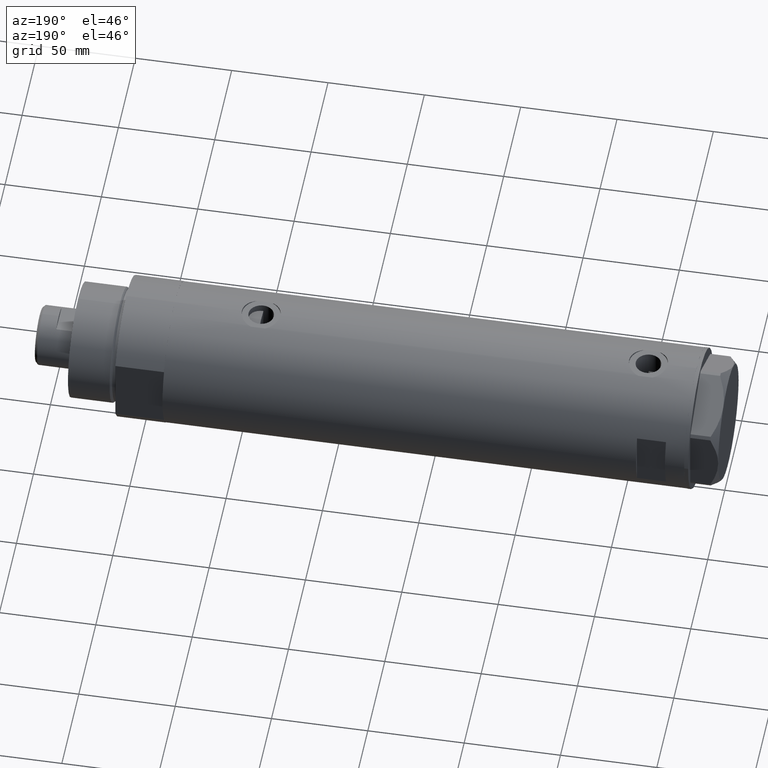
[diagram: clean part render]
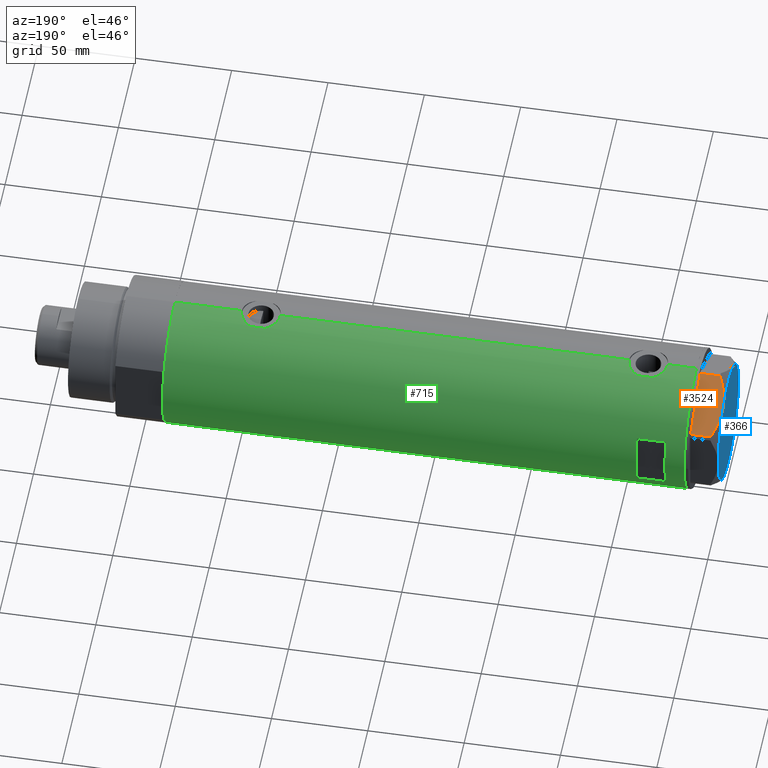
[diagram: same view with three faces highlighted in distinct colors, each labeled with its STEP entity id]
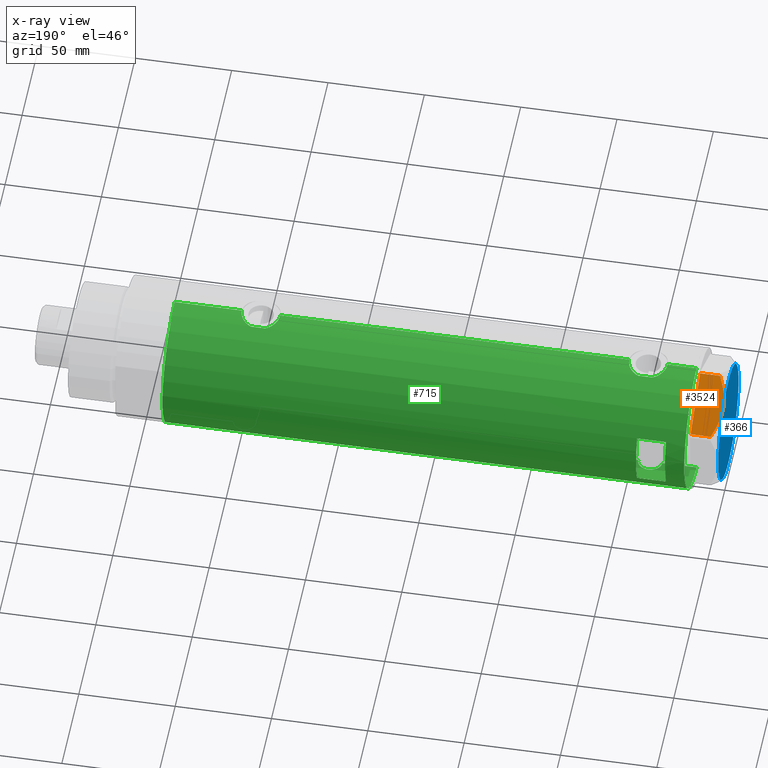
[diagram: x-ray of the same camera — body ghosted, the three highlighted faces saturated]
A machine part, auxiliary view with three faces highlighted in distinct colors.
The next image is the same camera in x-ray (body ghosted, the three faces saturated) — at least one of them is partly hidden behind the body in this view.
Their STEP definitions:

[orange] entity #3524 — the highlighted planar face has unit normal (-0, -0.5, -0.866).
#104 = CARTESIAN_POINT ( 'NONE',  ( 12.54037849421161077, -27.40082525200466179, 14.37423503257921986 ) ) ;
#128 = CARTESIAN_POINT ( 'NONE',  ( 8.929227268745744794, -29.48572438411182262, 13.71922620632299861 ) ) ;
#167 = ORIENTED_EDGE ( 'NONE', *, *, #291, .T. ) ;
#203 = CARTESIAN_POINT ( 'NONE',  ( 3.175372020745254709, -32.80771426042306160, 11.61522964162834803 ) ) ;
#247 = CARTESIAN_POINT ( 'NONE',  ( 29.03005154776141694, -17.88050807568878042, 0.000000000000000000 ) ) ;
#291 = EDGE_CURVE ( 'NONE', #2799, #1263, #2985, .T. ) ;
#314 = ORIENTED_EDGE ( 'NONE', *, *, #4202, .T. ) ;
#385 = VECTOR ( 'NONE', #509, 1000.000000000000000 ) ;
#397 = CARTESIAN_POINT ( 'NONE',  ( 14.99999999999998757, -25.98076211353316722, 14.50000000000000000 ) ) ;
#419 = CARTESIAN_POINT ( 'NONE',  ( 14.99999999999998757, -25.98076211353316722, 14.50000000000000000 ) ) ;
#441 = CARTESIAN_POINT ( 'NONE',  ( 25.09761465865700103, -20.15090157218441647, 12.31959434659020047 ) ) ;
#448 = CARTESIAN_POINT ( 'NONE',  ( 11.92931894229900891, -27.75362064879230317, 14.29910535634587276 ) ) ;
#509 = DIRECTION ( 'NONE',  ( 0.000000000000000000, 0.000000000000000000, -1.000000000000000000 ) ) ;
#569 = VECTOR ( 'NONE', #2212, 1000.000000000000000 ) ;
#685 = CARTESIAN_POINT ( 'NONE',  ( 27.92668431253404293, -18.51753744596231854, 11.01056656432685266 ) ) ;
#699 = EDGE_CURVE ( 'NONE', #2799, #4018, #3143, .T. ) ;
#706 = CARTESIAN_POINT ( 'NONE',  ( -5.841958412462644145E-15, -34.64101615137753498, 14.50000000000000000 ) ) ;
#730 = CARTESIAN_POINT ( 'NONE',  ( 0.9699484522385750651, -34.08101615137752560, 0.000000000000000000 ) ) ;
#905 = CARTESIAN_POINT ( 'NONE',  ( 0.9699484522384129725, -34.08101615137761797, 10.40518423703596262 ) ) ;
#934 = EDGE_LOOP ( 'NONE', ( #3682, #167, #3094, #314, #3570 ) ) ;
#1041 = FACE_OUTER_BOUND ( 'NONE', #934, .T. ) ;
#1263 = VERTEX_POINT ( 'NONE', #730 ) ;
#1340 = LINE ( 'NONE', #4108, #2207 ) ;
#1556 = CARTESIAN_POINT ( 'NONE',  ( 14.38812268849981457, -26.33402964403881086, 14.50000000000000533 ) ) ;
#1655 = DIRECTION ( 'NONE',  ( 0.8660254037844389297, 0.4999999999999996114, 0.000000000000000000 ) ) ;
#1784 = CARTESIAN_POINT ( 'NONE',  ( 22.77266513462829067, -21.49321180573469547, 13.19311392138146566 ) ) ;
#1989 = AXIS2_PLACEMENT_3D ( 'NONE', #706, #3482, #2073 ) ;
#2073 = DIRECTION ( 'NONE',  ( -0.8660254037844389297, -0.4999999999999996114, 0.000000000000000000 ) ) ;
#2159 = B_SPLINE_CURVE_WITH_KNOTS ( 'NONE', 3,
 ( #419, #2390, #3785, #1784, #2481, #3104, #441, #3179, #685, #4225 ),
 .UNSPECIFIED., .F., .F.,
 ( 4, 2, 2, 2, 4 ),
 ( 0.01795453117522810213, 0.02625795893839791284, 0.02833381587919036812, 0.03040967281998282340, 0.03456138670156773396 ),
 .UNSPECIFIED. ) ;
#2185 = CARTESIAN_POINT ( 'NONE',  ( 29.03005154776141694, -17.88050807568878042, 14.50000000000000000 ) ) ;
#2207 = VECTOR ( 'NONE', #1655, 1000.000000000000000 ) ;
#2212 = DIRECTION ( 'NONE',  ( 0.000000000000000000, 0.000000000000000000, 1.000000000000000000 ) ) ;
#2228 = EDGE_CURVE ( 'NONE', #4018, #4350, #2159, .T. ) ;
#2390 = CARTESIAN_POINT ( 'NONE',  ( 17.43031680809873762, -24.57761805016126644, 14.50000000000000711 ) ) ;
#2407 = PLANE ( 'NONE',  #1989 ) ;
#2481 = CARTESIAN_POINT ( 'NONE',  ( 23.36084816446653889, -21.15362417512481130, 12.99122625442232604 ) ) ;
#2490 = CARTESIAN_POINT ( 'NONE',  ( 5.430403497542005020, -31.50577123026336679, 12.63511531451933045 ) ) ;
#2513 = CARTESIAN_POINT ( 'NONE',  ( 10.11505054612624477, -28.80108899570488035, 14.00566141361761296 ) ) ;
#2799 = VERTEX_POINT ( 'NONE', #905 ) ;
#2956 = CARTESIAN_POINT ( 'NONE',  ( 13.77383861939864218, -26.68868671669325821, 14.47500996539162088 ) ) ;
#2985 = LINE ( 'NONE', #3629, #385 ) ;
#2994 = CARTESIAN_POINT ( 'NONE',  ( 29.03005154776142049, -17.88050807568878042, 10.40518423703603901 ) ) ;
#3094 = ORIENTED_EDGE ( 'NONE', *, *, #4363, .T. ) ;
#3104 = CARTESIAN_POINT ( 'NONE',  ( 24.52256617298829156, -20.48290597018233328, 12.55468001512206833 ) ) ;
#3143 = B_SPLINE_CURVE_WITH_KNOTS ( 'NONE', 3,
 ( #3300, #203, #2490, #128, #2513, #448, #104, #2956, #1556, #4348 ),
 .UNSPECIFIED., .F., .F.,
 ( 4, 2, 2, 2, 4 ),
 ( 0.001230196178133386971, 0.009592363676680742274, 0.01377344742595442220, 0.01586398930059126217, 0.01795453117522810213 ),
 .UNSPECIFIED. ) ;
#3179 = CARTESIAN_POINT ( 'NONE',  ( 26.80734602959450541, -19.16378770493171402, 11.56973717813738212 ) ) ;
#3300 = CARTESIAN_POINT ( 'NONE',  ( 0.9699484522384129725, -34.08101615137761797, 10.40518423703596262 ) ) ;
#3482 = DIRECTION ( 'NONE',  ( -0.4999999999999996114, 0.8660254037844389297, 0.000000000000000000 ) ) ;
#3524 = ADVANCED_FACE ( 'NONE', ( #1041 ), #2407, .F. ) ;
#3570 = ORIENTED_EDGE ( 'NONE', *, *, #2228, .F. ) ;
#3629 = CARTESIAN_POINT ( 'NONE',  ( 0.9699484522385750651, -34.08101615137752560, 14.50000000000000000 ) ) ;
#3636 = LINE ( 'NONE', #2185, #569 ) ;
#3682 = ORIENTED_EDGE ( 'NONE', *, *, #699, .F. ) ;
#3785 = CARTESIAN_POINT ( 'NONE',  ( 19.82219921729533141, -23.19666409734169221, 14.10092492974135503 ) ) ;
#3966 = VERTEX_POINT ( 'NONE', #247 ) ;
#4018 = VERTEX_POINT ( 'NONE', #397 ) ;
#4108 = CARTESIAN_POINT ( 'NONE',  ( -5.841958412462644145E-15, -34.64101615137753498, 0.000000000000000000 ) ) ;
#4202 = EDGE_CURVE ( 'NONE', #3966, #4350, #3636, .T. ) ;
#4225 = CARTESIAN_POINT ( 'NONE',  ( 29.03005154776142049, -17.88050807568878042, 10.40518423703603901 ) ) ;
#4348 = CARTESIAN_POINT ( 'NONE',  ( 14.99999999999998757, -25.98076211353316722, 14.50000000000000000 ) ) ;
#4350 = VERTEX_POINT ( 'NONE', #2994 ) ;
#4363 = EDGE_CURVE ( 'NONE', #1263, #3966, #1340, .T. ) ;

[blue] entity #366 — the highlighted planar face has unit normal (-1, -0, 0).
#38 = AXIS2_PLACEMENT_3D ( 'NONE', #3943, #145, #2593 ) ;
#39 = CARTESIAN_POINT ( 'NONE',  ( 0.000000000000000000, 0.000000000000000000, 14.50000000000000000 ) ) ;
#55 = AXIS2_PLACEMENT_3D ( 'NONE', #1371, #2735, #923 ) ;
#145 = DIRECTION ( 'NONE',  ( 0.000000000000000000, 0.000000000000000000, 1.000000000000000000 ) ) ;
#193 = EDGE_CURVE ( 'NONE', #882, #3335, #3929, .T. ) ;
#366 = ADVANCED_FACE ( 'NONE', ( #2723 ), #4123, .T. ) ;
#382 = VERTEX_POINT ( 'NONE', #1380 ) ;
#397 = CARTESIAN_POINT ( 'NONE',  ( 14.99999999999998757, -25.98076211353316722, 14.50000000000000000 ) ) ;
#432 = DIRECTION ( 'NONE',  ( 0.000000000000000000, 0.000000000000000000, 1.000000000000000000 ) ) ;
#439 = ORIENTED_EDGE ( 'NONE', *, *, #1888, .T. ) ;
#686 = CIRCLE ( 'NONE', #1979, 30.00000000000000000 ) ;
#792 = DIRECTION ( 'NONE',  ( 1.000000000000000000, 0.000000000000000000, 0.000000000000000000 ) ) ;
#829 = ORIENTED_EDGE ( 'NONE', *, *, #1634, .T. ) ;
#882 = VERTEX_POINT ( 'NONE', #2551 ) ;
#907 = DIRECTION ( 'NONE',  ( 0.000000000000000000, 0.000000000000000000, 1.000000000000000000 ) ) ;
#923 = DIRECTION ( 'NONE',  ( 1.000000000000000000, 0.000000000000000000, 0.000000000000000000 ) ) ;
#1037 = AXIS2_PLACEMENT_3D ( 'NONE', #2381, #432, #2812 ) ;
#1048 = AXIS2_PLACEMENT_3D ( 'NONE', #3577, #1817, #792 ) ;
#1078 = DIRECTION ( 'NONE',  ( 0.000000000000000000, 0.000000000000000000, 1.000000000000000000 ) ) ;
#1120 = CIRCLE ( 'NONE', #1048, 30.00000000000000000 ) ;
#1152 = VERTEX_POINT ( 'NONE', #1739 ) ;
#1368 = EDGE_CURVE ( 'NONE', #382, #3019, #2763, .T. ) ;
#1371 = CARTESIAN_POINT ( 'NONE',  ( 0.000000000000000000, 0.000000000000000000, 14.50000000000000000 ) ) ;
#1380 = CARTESIAN_POINT ( 'NONE',  ( -14.99999999999999645, 25.98076211353316367, 14.50000000000000000 ) ) ;
#1630 = CARTESIAN_POINT ( 'NONE',  ( 14.99999999999999467, 25.98076211353316367, 14.50000000000000000 ) ) ;
#1634 = EDGE_CURVE ( 'NONE', #3019, #1152, #1120, .T. ) ;
#1739 = CARTESIAN_POINT ( 'NONE',  ( -14.99999999999999645, -25.98076211353316367, 14.50000000000000000 ) ) ;
#1817 = DIRECTION ( 'NONE',  ( 0.000000000000000000, 0.000000000000000000, 1.000000000000000000 ) ) ;
#1888 = EDGE_CURVE ( 'NONE', #3335, #382, #686, .T. ) ;
#1905 = DIRECTION ( 'NONE',  ( 1.000000000000000000, 0.000000000000000000, 0.000000000000000000 ) ) ;
#1942 = CARTESIAN_POINT ( 'NONE',  ( 0.000000000000000000, 0.000000000000000000, 14.50000000000000000 ) ) ;
#1979 = AXIS2_PLACEMENT_3D ( 'NONE', #39, #1078, #2440 ) ;
#2381 = CARTESIAN_POINT ( 'NONE',  ( 0.000000000000000000, 0.000000000000000000, 14.50000000000000000 ) ) ;
#2440 = DIRECTION ( 'NONE',  ( 1.000000000000000000, 0.000000000000000000, 0.000000000000000000 ) ) ;
#2463 = AXIS2_PLACEMENT_3D ( 'NONE', #1942, #907, #2571 ) ;
#2551 = CARTESIAN_POINT ( 'NONE',  ( 30.00000000000000000, 9.013887592422954582E-15, 14.50000000000000000 ) ) ;
#2571 = DIRECTION ( 'NONE',  ( 1.000000000000000000, 0.000000000000000000, 0.000000000000000000 ) ) ;
#2593 = DIRECTION ( 'NONE',  ( 1.000000000000000000, 0.000000000000000000, 0.000000000000000000 ) ) ;
#2671 = EDGE_LOOP ( 'NONE', ( #4378, #3385, #439, #4097, #829, #4475 ) ) ;
#2723 = FACE_OUTER_BOUND ( 'NONE', #2671, .T. ) ;
#2735 = DIRECTION ( 'NONE',  ( 0.000000000000000000, 0.000000000000000000, 1.000000000000000000 ) ) ;
#2763 = CIRCLE ( 'NONE', #38, 30.00000000000000000 ) ;
#2812 = DIRECTION ( 'NONE',  ( 1.000000000000000000, 0.000000000000000000, -0.000000000000000000 ) ) ;
#3019 = VERTEX_POINT ( 'NONE', #3232 ) ;
#3232 = CARTESIAN_POINT ( 'NONE',  ( -30.00000000000000000, 0.000000000000000000, 14.50000000000000000 ) ) ;
#3302 = CARTESIAN_POINT ( 'NONE',  ( 0.000000000000000000, 0.000000000000000000, 14.50000000000000000 ) ) ;
#3335 = VERTEX_POINT ( 'NONE', #1630 ) ;
#3385 = ORIENTED_EDGE ( 'NONE', *, *, #193, .T. ) ;
#3577 = CARTESIAN_POINT ( 'NONE',  ( 0.000000000000000000, 0.000000000000000000, 14.50000000000000000 ) ) ;
#3697 = EDGE_CURVE ( 'NONE', #4018, #882, #3879, .T. ) ;
#3879 = CIRCLE ( 'NONE', #3955, 30.00000000000000000 ) ;
#3929 = CIRCLE ( 'NONE', #2463, 30.00000000000000000 ) ;
#3937 = EDGE_CURVE ( 'NONE', #1152, #4018, #4254, .T. ) ;
#3943 = CARTESIAN_POINT ( 'NONE',  ( 0.000000000000000000, 0.000000000000000000, 14.50000000000000000 ) ) ;
#3954 = DIRECTION ( 'NONE',  ( 0.000000000000000000, 0.000000000000000000, 1.000000000000000000 ) ) ;
#3955 = AXIS2_PLACEMENT_3D ( 'NONE', #3302, #3954, #1905 ) ;
#4018 = VERTEX_POINT ( 'NONE', #397 ) ;
#4097 = ORIENTED_EDGE ( 'NONE', *, *, #1368, .T. ) ;
#4123 = PLANE ( 'NONE',  #1037 ) ;
#4254 = CIRCLE ( 'NONE', #55, 30.00000000000000000 ) ;
#4378 = ORIENTED_EDGE ( 'NONE', *, *, #3697, .T. ) ;
#4475 = ORIENTED_EDGE ( 'NONE', *, *, #3937, .T. ) ;

[green] entity #715 — the highlighted cylindrical surface (partial cylindrical patch) has radius 36.5 mm, axis along (-1, -0, 0).
#17 = ORIENTED_EDGE ( 'NONE', *, *, #3029, .F. ) ;
#18 = CARTESIAN_POINT ( 'NONE',  ( -35.96088929326157313, 6.250155299092687855, -99.50610494763242286 ) ) ;
#41 = CARTESIAN_POINT ( 'NONE',  ( -36.49999999999999289, 0.4083036190459308212, -105.3499999999999801 ) ) ;
#44 = CARTESIAN_POINT ( 'NONE',  ( -35.99700617875953412, 6.038972911021586398, 113.0233318579832229 ) ) ;
#85 = CARTESIAN_POINT ( 'NONE',  ( -36.26695135241003953, 4.128455078791301247, 106.6896240835525163 ) ) ;
#125 = AXIS2_PLACEMENT_3D ( 'NONE', #156, #1534, #3640 ) ;
#151 = CARTESIAN_POINT ( 'NONE',  ( 35.52737867031126484, 8.373910777960906771, -96.08860356717065088 ) ) ;
#154 = CARTESIAN_POINT ( 'NONE',  ( 36.50000000000000000, 0.000000000000000000, 100.4000000000000057 ) ) ;
#156 = CARTESIAN_POINT ( 'NONE',  ( 0.000000000000000000, 0.000000000000000000, 125.3999999999999773 ) ) ;
#176 = VERTEX_POINT ( 'NONE', #3287 ) ;
#189 = CARTESIAN_POINT ( 'NONE',  ( 35.29999999999999716, 9.282241108697837362, -135.4000000000000057 ) ) ;
#197 = CARTESIAN_POINT ( 'NONE',  ( 36.50000000000000000, 0.000000000000000000, -100.5999999999999801 ) ) ;
#214 = CARTESIAN_POINT ( 'NONE',  ( 35.83170458557578542, 6.955065627744199119, 117.5894167191246282 ) ) ;
#227 = CARTESIAN_POINT ( 'NONE',  ( 36.34264078466112124, 3.418717136061403927, -81.18950965959248833 ) ) ;
#251 = CARTESIAN_POINT ( 'NONE',  ( -36.50000000000000000, 4.469960816887838430E-15, -135.4000000000000057 ) ) ;
#252 = CARTESIAN_POINT ( 'NONE',  ( 0.000000000000000000, 0.000000000000000000, 110.3999999999999773 ) ) ;
#255 = ORIENTED_EDGE ( 'NONE', *, *, #4158, .F. ) ;
#257 = DIRECTION ( 'NONE',  ( 0.000000000000000000, 0.000000000000000000, 1.000000000000000000 ) ) ;
#276 = CARTESIAN_POINT ( 'NONE',  ( -36.44504802628534179, 2.011764947064737630, 117.3209364490851669 ) ) ;
#279 = CIRCLE ( 'NONE', #125, 36.50000000000000000 ) ;
#298 = CARTESIAN_POINT ( 'NONE',  ( 36.40008489419980720, 2.709263960908029123, 120.0291810459638668 ) ) ;
#330 = VERTEX_POINT ( 'NONE', #1333 ) ;
#334 = CARTESIAN_POINT ( 'NONE',  ( 36.48988646280794512, 0.9921857666168139023, -80.63671884865571826 ) ) ;
#354 = B_SPLINE_CURVE_WITH_KNOTS ( 'NONE', 3,
 ( #2335, #4376, #2589, #3027, #3735, #1266, #214, #1939, #4069, #2631, #930, #2003, #3397, #298, #2245, #554, #3313, #4259, #2508, #1149 ),
 .UNSPECIFIED., .F., .F.,
 ( 4, 2, 2, 2, 2, 2, 2, 2, 2, 4 ),
 ( 0.000000000000000000, 0.002977391289382919342, 0.003721739111728640179, 0.004466086934074362316, 0.005954782578765775367, 0.007443478223457188417, 0.008932173868148601467, 0.009676521690494316666, 0.01042086951284003013, 0.01190956515753145012 ),
 .UNSPECIFIED. ) ;
#376 = CARTESIAN_POINT ( 'NONE',  ( -36.49297130294515057, 0.8204796224394291793, -92.89068307782267198 ) ) ;
#377 = CARTESIAN_POINT ( 'NONE',  ( -36.05296344941216091, 5.695624845616832133, 108.8184514346324931 ) ) ;
#401 = CARTESIAN_POINT ( 'NONE',  ( -36.50000000000000000, 0.4137727629436737664, -92.85000000000000853 ) ) ;
#425 = CARTESIAN_POINT ( 'NONE',  ( 35.40502660484481368, 8.876998817796907915, 105.7690127592876621 ) ) ;
#445 = VERTEX_POINT ( 'NONE', #3667 ) ;
#446 = CARTESIAN_POINT ( 'NONE',  ( 35.72860827204725354, 7.471059959301281417, 103.7347484952559284 ) ) ;
#473 = ORIENTED_EDGE ( 'NONE', *, *, #3624, .F. ) ;
#494 = CARTESIAN_POINT ( 'NONE',  ( 36.36225053217120973, 3.177096004138049601, -100.0851602447597770 ) ) ;
#538 = CARTESIAN_POINT ( 'NONE',  ( 36.34070350304396868, 3.414301401755543974, -100.0023621737590531 ) ) ;
#554 = CARTESIAN_POINT ( 'NONE',  ( 36.44688397185920081, 1.983417953489138741, 120.2044995764825472 ) ) ;
#567 = CARTESIAN_POINT ( 'NONE',  ( 36.40008489419980720, 2.709263960908029123, -80.97081895403604790 ) ) ;
#577 = DIRECTION ( 'NONE',  ( -0.000000000000000000, -0.000000000000000000, 1.000000000000000000 ) ) ;
#597 = VERTEX_POINT ( 'NONE', #635 ) ;
#635 = CARTESIAN_POINT ( 'NONE',  ( -36.50000000000000000, 1.603939656238031057E-15, -92.84999999999999432 ) ) ;
#643 = LINE ( 'NONE', #2988, #4153 ) ;
#653 = CARTESIAN_POINT ( 'NONE',  ( -36.30200038006936580, 3.811959488093743520, -94.13027895163997982 ) ) ;
#655 = CARTESIAN_POINT ( 'NONE',  ( -36.06675137892952421, 5.607935153446978127, 114.1668182600875809 ) ) ;
#669 = CARTESIAN_POINT ( 'NONE',  ( -36.44628644024909647, 2.015372769639941275, -105.0302812801358527 ) ) ;
#673 = CARTESIAN_POINT ( 'NONE',  ( -36.50000000000000000, 1.603939656238031057E-15, 117.6500000000000057 ) ) ;
#703 = EDGE_CURVE ( 'NONE', #4368, #2062, #4402, .T. ) ;
#715 = ADVANCED_FACE ( 'NONE', ( #2392, #1050 ), #2118, .T. ) ;
#722 = CARTESIAN_POINT ( 'NONE',  ( -35.99530513653993324, 6.049346314076207598, 109.7766741696416375 ) ) ;
#736 = CARTESIAN_POINT ( 'NONE',  ( -36.03936508729894683, 5.782103729777505308, -96.70129467396202472 ) ) ;
#737 = CARTESIAN_POINT ( 'NONE',  ( -36.30181775639987052, 3.813582387016785091, 106.4316394242556072 ) ) ;
#750 = EDGE_CURVE ( 'NONE', #1249, #2876, #3085, .T. ) ;
#761 = CARTESIAN_POINT ( 'NONE',  ( -36.06690560274405044, 5.606949625760674571, 108.6311407604106876 ) ) ;
#775 = VERTEX_POINT ( 'NONE', #1076 ) ;
#788 = CARTESIAN_POINT ( 'NONE',  ( 35.72794581931695745, 7.469526493268205058, -83.94660203271737942 ) ) ;
#799 = CARTESIAN_POINT ( 'NONE',  ( 36.50000000000000711, 1.005842003469123336, 100.4000000000000199 ) ) ;
#802 = CARTESIAN_POINT ( 'NONE',  ( -36.40902375114221456, 2.582415566883930591, 105.7047830853031058 ) ) ;
#809 = ORIENTED_EDGE ( 'NONE', *, *, #2572, .T. ) ;
#821 = CARTESIAN_POINT ( 'NONE',  ( 36.45853166336080875, 1.985123042546145022, -100.4516267041773432 ) ) ;
#851 = CARTESIAN_POINT ( 'NONE',  ( 36.50000000000000000, 4.344614706140975428E-19, -80.59999999999999432 ) ) ;
#854 = CARTESIAN_POINT ( 'NONE',  ( 35.59366931936805400, 8.089554397885871495, 104.5007268091218862 ) ) ;
#873 = CARTESIAN_POINT ( 'NONE',  ( 35.40502660484481368, 8.876998817796907915, -95.23098724071233789 ) ) ;
#903 = DIRECTION ( 'NONE',  ( -1.000000000000000000, -1.776356839400250465E-15, 0.000000000000000000 ) ) ;
#904 = VECTOR ( 'NONE', #2384, 1000.000000000000000 ) ;
#912 = VECTOR ( 'NONE', #3579, 1000.000000000000000 ) ;
#918 = CARTESIAN_POINT ( 'NONE',  ( 35.29999999999999716, 9.282241108697837362, -135.4000000000000057 ) ) ;
#930 = CARTESIAN_POINT ( 'NONE',  ( 36.18937351723702278, 4.773052864917646687, 119.2013599311883922 ) ) ;
#941 = ORIENTED_EDGE ( 'NONE', *, *, #2038, .T. ) ;
#970 = CARTESIAN_POINT ( 'NONE',  ( -36.36688032967140316, 3.133094607697482825, 116.8233643263751134 ) ) ;
#993 = CARTESIAN_POINT ( 'NONE',  ( -36.11199073531170001, 5.309184630646994307, -95.79587159233167881 ) ) ;
#996 = CARTESIAN_POINT ( 'NONE',  ( -36.16126303108062956, 4.966520032693302333, 115.2164122774528181 ) ) ;
#1014 = CARTESIAN_POINT ( 'NONE',  ( -36.46598788992680085, 1.625721481788714895, -105.1487204671383608 ) ) ;
#1050 = FACE_OUTER_BOUND ( 'NONE', #1264, .T. ) ;
#1054 = CARTESIAN_POINT ( 'NONE',  ( -36.36688032967140316, 3.133094607697482825, -93.67663567362490085 ) ) ;
#1056 = VERTEX_POINT ( 'NONE', #1595 ) ;
#1058 = CARTESIAN_POINT ( 'NONE',  ( -36.19597718496778072, 4.710322426433902976, 107.2714838923798482 ) ) ;
#1066 = DIRECTION ( 'NONE',  ( 1.000000000000000000, 0.000000000000000000, 0.000000000000000000 ) ) ;
#1076 = CARTESIAN_POINT ( 'NONE',  ( 36.50000000000000000, 0.000000000000000000, -100.5999999999999801 ) ) ;
#1080 = CARTESIAN_POINT ( 'NONE',  ( -36.09617453667821252, 5.415318599347967776, -95.97293357327089325 ) ) ;
#1082 = CARTESIAN_POINT ( 'NONE',  ( -35.96088929326157313, 6.250155299092687855, 110.9938950523675345 ) ) ;
#1097 = VERTEX_POINT ( 'NONE', #1657 ) ;
#1098 = CARTESIAN_POINT ( 'NONE',  ( 35.34894515018992678, 9.096104616284845790, 106.2153591653345615 ) ) ;
#1127 = CARTESIAN_POINT ( 'NONE',  ( -35.96805604460922723, 6.209309709790234777, 110.5788724173182942 ) ) ;
#1130 = LINE ( 'NONE', #3277, #3511 ) ;
#1149 = CARTESIAN_POINT ( 'NONE',  ( 36.50000000000000000, 4.344614706140975428E-19, 120.3999999999999915 ) ) ;
#1154 = CARTESIAN_POINT ( 'NONE',  ( -36.01524716445113938, 5.931039972055515364, 109.3866926813534661 ) ) ;
#1167 = CARTESIAN_POINT ( 'NONE',  ( 36.00287854058830561, 6.017835360302999703, -98.60188117181722589 ) ) ;
#1170 = DIRECTION ( 'NONE',  ( 1.000000000000000000, 0.000000000000000000, 0.000000000000000000 ) ) ;
#1187 = AXIS2_PLACEMENT_3D ( 'NONE', #1725, #1437, #2077 ) ;
#1192 = ORIENTED_EDGE ( 'NONE', *, *, #3263, .F. ) ;
#1194 = CARTESIAN_POINT ( 'NONE',  ( 36.13018480315372472, 5.199168368309159405, 101.8435350179194643 ) ) ;
#1195 = ORIENTED_EDGE ( 'NONE', *, *, #1684, .F. ) ;
#1196 = CARTESIAN_POINT ( 'NONE',  ( 35.29999999999999716, 9.282241108697837362, -86.87978495245235422 ) ) ;
#1248 = CARTESIAN_POINT ( 'NONE',  ( 14.49137674618942739, 33.50000000000000000, 125.3999999999999773 ) ) ;
#1249 = VERTEX_POINT ( 'NONE', #3784 ) ;
#1264 = EDGE_LOOP ( 'NONE', ( #809, #4042, #1507, #4128, #473, #2466, #2359, #2461, #1727, #3331, #1192, #4454, #3999, #941, #255, #1195 ) ) ;
#1266 = CARTESIAN_POINT ( 'NONE',  ( 35.79715675463678792, 7.130463293899340194, 117.4155558410599411 ) ) ;
#1325 = CARTESIAN_POINT ( 'NONE',  ( -36.30181775639987052, 3.813582387016785091, -104.0683605757443360 ) ) ;
#1333 = CARTESIAN_POINT ( 'NONE',  ( 36.50000000000000000, 4.344614706140975428E-19, 120.3999999999999915 ) ) ;
#1353 = CARTESIAN_POINT ( 'NONE',  ( -35.99530513653993324, 6.049346314076207598, -100.7233258303583483 ) ) ;
#1373 = CARTESIAN_POINT ( 'NONE',  ( -36.16083474549355259, 4.969527450313384165, -102.9120531912274998 ) ) ;
#1391 = EDGE_CURVE ( 'NONE', #597, #3188, #3379, .T. ) ;
#1394 = CARTESIAN_POINT ( 'NONE',  ( -36.43371204571226230, 2.206934156026287841, -93.24902718329002482 ) ) ;
#1420 = CARTESIAN_POINT ( 'NONE',  ( -35.96094343308265451, 6.249843792257633091, 111.8108711034456917 ) ) ;
#1437 = DIRECTION ( 'NONE',  ( 0.000000000000000000, 0.000000000000000000, 1.000000000000000000 ) ) ;
#1465 = CARTESIAN_POINT ( 'NONE',  ( -36.35033317675380005, 3.306376218664579536, 106.0922928058394632 ) ) ;
#1473 = EDGE_CURVE ( 'NONE', #330, #2441, #643, .T. ) ;
#1506 = CARTESIAN_POINT ( 'NONE',  ( 36.29420020483473053, 3.877527130731370342, -99.82098974400290103 ) ) ;
#1507 = ORIENTED_EDGE ( 'NONE', *, *, #3216, .F. ) ;
#1509 = CARTESIAN_POINT ( 'NONE',  ( 36.12877841835537396, 5.208882251161925936, -82.04946835209707956 ) ) ;
#1521 = VERTEX_POINT ( 'NONE', #2724 ) ;
#1530 = CARTESIAN_POINT ( 'NONE',  ( 36.34070350304396868, 3.414301401755543974, 100.9976378262409327 ) ) ;
#1533 = CARTESIAN_POINT ( 'NONE',  ( 36.18937351723702278, 4.773052864917646687, -81.79864006881155092 ) ) ;
#1534 = DIRECTION ( 'NONE',  ( -0.000000000000000000, -0.000000000000000000, -1.000000000000000000 ) ) ;
#1551 = CARTESIAN_POINT ( 'NONE',  ( 36.13018480315372472, 5.199168368309159405, -99.15646498208049309 ) ) ;
#1578 = CARTESIAN_POINT ( 'NONE',  ( 35.29999999999999716, 9.282241108697837362, -94.32021504754762020 ) ) ;
#1592 = EDGE_CURVE ( 'NONE', #3956, #1056, #2817, .T. ) ;
#1595 = CARTESIAN_POINT ( 'NONE',  ( -14.49137674618942739, 33.50000000000000000, 125.3999999999999773 ) ) ;
#1600 = CARTESIAN_POINT ( 'NONE',  ( 36.44688397185920081, 1.983417953489138741, -80.79550042351748118 ) ) ;
#1626 = VECTOR ( 'NONE', #3617, 1000.000000000000000 ) ;
#1657 = CARTESIAN_POINT ( 'NONE',  ( 35.29999999999999716, 9.282241108697837362, 114.1202150475476316 ) ) ;
#1681 = CARTESIAN_POINT ( 'NONE',  ( -36.36587679577595367, 3.131448301962863834, -104.5128246557361820 ) ) ;
#1684 = EDGE_CURVE ( 'NONE', #445, #775, #1797, .T. ) ;
#1688 = CIRCLE ( 'NONE', #3583, 36.50000000000000000 ) ;
#1715 = CARTESIAN_POINT ( 'NONE',  ( 0.000000000000000000, 0.000000000000000000, -135.4000000000000057 ) ) ;
#1725 = CARTESIAN_POINT ( 'NONE',  ( 0.000000000000000000, 0.000000000000000000, -135.4000000000000057 ) ) ;
#1727 = ORIENTED_EDGE ( 'NONE', *, *, #1793, .F. ) ;
#1728 = CARTESIAN_POINT ( 'NONE',  ( -36.26695135241003953, 4.128455078791301247, -103.8103759164473558 ) ) ;
#1745 = CARTESIAN_POINT ( 'NONE',  ( -36.39638105034455151, 2.774378062517171006, -93.48456667300897038 ) ) ;
#1764 = CARTESIAN_POINT ( 'NONE',  ( -36.44504802628534179, 2.011764947064737630, -93.17906355091479043 ) ) ;
#1767 = EDGE_CURVE ( 'NONE', #3474, #3956, #1688, .T. ) ;
#1779 = CARTESIAN_POINT ( 'NONE',  ( 14.49137674618942917, 33.50000000000000000, 110.3999999999999773 ) ) ;
#1785 = CARTESIAN_POINT ( 'NONE',  ( 36.45954139109321801, 1.735915671103595681, -80.74863218852991054 ) ) ;
#1793 = EDGE_CURVE ( 'NONE', #1097, #330, #354, .T. ) ;
#1797 = LINE ( 'NONE', #3211, #3145 ) ;
#1809 = CARTESIAN_POINT ( 'NONE',  ( 35.93456089024232369, 6.410413305453381838, 102.7091403679585397 ) ) ;
#1833 = CARTESIAN_POINT ( 'NONE',  ( 35.93435287561198521, 6.411571491280768420, -82.91011355077159806 ) ) ;
#1856 = CARTESIAN_POINT ( 'NONE',  ( 36.50000000000000711, 1.005842003469123336, -100.5999999999999943 ) ) ;
#1859 = CARTESIAN_POINT ( 'NONE',  ( 36.36225053217120973, 3.177096004138049601, 100.9148397552402088 ) ) ;
#1860 = CARTESIAN_POINT ( 'NONE',  ( 35.69321149401851301, 7.633476302278308978, -84.13536927833555978 ) ) ;
#1874 = CARTESIAN_POINT ( 'NONE',  ( 35.34894515018992678, 9.096104616284845790, -94.78464083466538170 ) ) ;
#1939 = CARTESIAN_POINT ( 'NONE',  ( 35.93435287561198521, 6.411571491280768420, 118.0898864492284304 ) ) ;
#1941 = VERTEX_POINT ( 'NONE', #2123 ) ;
#1953 = CARTESIAN_POINT ( 'NONE',  ( -14.49137674618942917, 33.50000000000000000, 110.3999999999999773 ) ) ;
#1978 = CARTESIAN_POINT ( 'NONE',  ( -36.49297130294515057, 0.8204796224394291793, 117.6093169221773422 ) ) ;
#1983 = DIRECTION ( 'NONE',  ( 0.000000000000000000, 0.000000000000000000, 1.000000000000000000 ) ) ;
#2002 = CARTESIAN_POINT ( 'NONE',  ( -36.19624103943463922, 4.708090268046848159, 115.5306122144614136 ) ) ;
#2003 = CARTESIAN_POINT ( 'NONE',  ( 36.29611582693038940, 3.878758190381173421, 119.6304498909954930 ) ) ;
#2019 = CARTESIAN_POINT ( 'NONE',  ( -36.19597718496778072, 4.710322426433902976, -103.2285161076201518 ) ) ;
#2038 = EDGE_CURVE ( 'NONE', #4368, #2287, #2972, .T. ) ;
#2044 = DIRECTION ( 'NONE',  ( 0.000000000000000000, 0.000000000000000000, 1.000000000000000000 ) ) ;
#2061 = CARTESIAN_POINT ( 'NONE',  ( -35.96094343308265451, 6.249843792257633091, -98.68912889655430831 ) ) ;
#2062 = VERTEX_POINT ( 'NONE', #851 ) ;
#2077 = DIRECTION ( 'NONE',  ( 1.000000000000000000, 0.000000000000000000, 0.000000000000000000 ) ) ;
#2081 = CARTESIAN_POINT ( 'NONE',  ( -35.98846897517730525, 6.089479646546502423, -97.67765108453481560 ) ) ;
#2085 = CARTESIAN_POINT ( 'NONE',  ( -36.09643313249890184, 5.413601294342275771, 108.2699222660814797 ) ) ;
#2086 = CARTESIAN_POINT ( 'NONE',  ( -36.50000000000000000, 4.469960816887838430E-15, 135.4000000000000057 ) ) ;
#2095 = EDGE_CURVE ( 'NONE', #2062, #3660, #4295, .T. ) ;
#2101 = CARTESIAN_POINT ( 'NONE',  ( -36.05296344941216091, 5.695624845616832133, -101.6815485653675495 ) ) ;
#2113 = VECTOR ( 'NONE', #2283, 1000.000000000000000 ) ;
#2118 = CYLINDRICAL_SURFACE ( 'NONE', #1187, 36.50000000000000000 ) ;
#2123 = CARTESIAN_POINT ( 'NONE',  ( -36.50000000000000000, 4.469960816887838430E-15, -135.4000000000000057 ) ) ;
#2169 = CARTESIAN_POINT ( 'NONE',  ( 35.39804469700249001, 8.909380959553011792, -85.94946835517158945 ) ) ;
#2176 = LINE ( 'NONE', #189, #912 ) ;
#2180 = VECTOR ( 'NONE', #3471, 1000.000000000000000 ) ;
#2197 = DIRECTION ( 'NONE',  ( -0.000000000000000000, -0.000000000000000000, -1.000000000000000000 ) ) ;
#2215 = CARTESIAN_POINT ( 'NONE',  ( 35.29999999999999716, 9.282241108697837362, 106.6797849524523656 ) ) ;
#2245 = CARTESIAN_POINT ( 'NONE',  ( 36.41717583764486932, 2.469534783404761402, 120.0934801117567048 ) ) ;
#2265 = AXIS2_PLACEMENT_3D ( 'NONE', #1715, #2044, #1066 ) ;
#2283 = DIRECTION ( 'NONE',  ( -0.000000000000000000, -0.000000000000000000, -1.000000000000000000 ) ) ;
#2287 = VERTEX_POINT ( 'NONE', #4178 ) ;
#2298 = CARTESIAN_POINT ( 'NONE',  ( 36.50000000000000000, 0.000000000000000000, 135.4000000000000057 ) ) ;
#2305 = ORIENTED_EDGE ( 'NONE', *, *, #1592, .F. ) ;
#2334 = CARTESIAN_POINT ( 'NONE',  ( -36.30200038006936580, 3.811959488093743520, 116.3697210483601054 ) ) ;
#2335 = CARTESIAN_POINT ( 'NONE',  ( 35.29999999999999716, 9.282241108697837362, 114.1202150475476316 ) ) ;
#2358 = CARTESIAN_POINT ( 'NONE',  ( -36.01524716445113938, 5.931039972055515364, -101.1133073186465623 ) ) ;
#2359 = ORIENTED_EDGE ( 'NONE', *, *, #3255, .F. ) ;
#2361 = CARTESIAN_POINT ( 'NONE',  ( -36.11199073531170001, 5.309184630646994307, 114.7041284076683496 ) ) ;
#2372 = CARTESIAN_POINT ( 'NONE',  ( -36.50000000000000000, 4.469960816887838430E-15, -135.4000000000000057 ) ) ;
#2378 = CARTESIAN_POINT ( 'NONE',  ( -36.46462099658055678, 1.618684470865507041, 117.4402439702484742 ) ) ;
#2384 = DIRECTION ( 'NONE',  ( 0.000000000000000000, 0.000000000000000000, 1.000000000000000000 ) ) ;
#2392 = FACE_BOUND ( 'NONE', #4045, .T. ) ;
#2396 = CARTESIAN_POINT ( 'NONE',  ( -36.50000000000000000, 4.469960493350315609E-15, 105.1499999999999915 ) ) ;
#2441 = VERTEX_POINT ( 'NONE', #2298 ) ;
#2442 = CARTESIAN_POINT ( 'NONE',  ( -36.19624103943463922, 4.708090268046848159, -94.96938778553862903 ) ) ;
#2444 = CARTESIAN_POINT ( 'NONE',  ( -36.16083474549355259, 4.969527450313384165, 107.5879468087725144 ) ) ;
#2461 = ORIENTED_EDGE ( 'NONE', *, *, #1473, .F. ) ;
#2466 = ORIENTED_EDGE ( 'NONE', *, *, #750, .T. ) ;
#2492 = CARTESIAN_POINT ( 'NONE',  ( -36.50000000000000000, 4.469960493350315609E-15, 105.1499999999999915 ) ) ;
#2508 = CARTESIAN_POINT ( 'NONE',  ( 36.49999999999999289, 0.4961820988516178477, 120.3999999999999631 ) ) ;
#2557 = CARTESIAN_POINT ( 'NONE',  ( 36.50000000000000000, 0.000000000000000000, -135.4000000000000057 ) ) ;
#2559 = CARTESIAN_POINT ( 'NONE',  ( 0.000000000000000000, 0.000000000000000000, 135.4000000000000057 ) ) ;
#2561 = CARTESIAN_POINT ( 'NONE',  ( 35.52347503888660896, 8.410566959990466884, -85.10046032740658006 ) ) ;
#2572 = EDGE_CURVE ( 'NONE', #445, #1941, #3657, .T. ) ;
#2589 = CARTESIAN_POINT ( 'NONE',  ( 35.52347503888660896, 8.410566959990466884, 115.8995396725934057 ) ) ;
#2631 = CARTESIAN_POINT ( 'NONE',  ( 36.12877841835537396, 5.208882251161925936, 118.9505316479029062 ) ) ;
#2636 = EDGE_CURVE ( 'NONE', #1097, #176, #2176, .T. ) ;
#2675 = CARTESIAN_POINT ( 'NONE',  ( -36.39638105034455151, 2.774378062517171006, 117.0154333269910296 ) ) ;
#2690 = CARTESIAN_POINT ( 'NONE',  ( -36.16126303108062956, 4.966520032693302333, -95.28358772254715348 ) ) ;
#2724 = CARTESIAN_POINT ( 'NONE',  ( -36.50000000000000000, 4.469960493350315609E-15, -105.3499999999999943 ) ) ;
#2737 = CARTESIAN_POINT ( 'NONE',  ( -36.35033317675380005, 3.306376218664579536, -104.4077071941605084 ) ) ;
#2742 = VERTEX_POINT ( 'NONE', #1248 ) ;
#2787 = CARTESIAN_POINT ( 'NONE',  ( -36.49999999999999289, 0.4083036190459308212, 105.1499999999999773 ) ) ;
#2809 = CARTESIAN_POINT ( 'NONE',  ( -36.46598788992680085, 1.625721481788714895, 105.3512795328616249 ) ) ;
#2817 = LINE ( 'NONE', #4125, #904 ) ;
#2876 = VERTEX_POINT ( 'NONE', #2086 ) ;
#2893 = CARTESIAN_POINT ( 'NONE',  ( 35.93456089024232369, 6.410413305453381838, -98.29085963204141763 ) ) ;
#2896 = CARTESIAN_POINT ( 'NONE',  ( 36.29420020483473053, 3.877527130731370342, 101.1790102559971132 ) ) ;
#2938 = AXIS2_PLACEMENT_3D ( 'NONE', #2559, #4279, #1170 ) ;
#2972 = LINE ( 'NONE', #918, #2113 ) ;
#2988 = CARTESIAN_POINT ( 'NONE',  ( 36.50000000000000000, 0.000000000000000000, -135.4000000000000057 ) ) ;
#3026 = CARTESIAN_POINT ( 'NONE',  ( -36.43371204571226230, 2.206934156026287841, 117.2509728167099468 ) ) ;
#3027 = CARTESIAN_POINT ( 'NONE',  ( 35.69321149401851301, 7.633476302278308978, 116.8646307216643976 ) ) ;
#3029 = EDGE_CURVE ( 'NONE', #2742, #3474, #1130, .T. ) ;
#3045 = CARTESIAN_POINT ( 'NONE',  ( -36.50000000000000000, 0.4137727629436737664, 117.6500000000000057 ) ) ;
#3069 = LINE ( 'NONE', #251, #4251 ) ;
#3085 = LINE ( 'NONE', #2372, #2180 ) ;
#3089 = CARTESIAN_POINT ( 'NONE',  ( -36.47290054070997201, 1.420408912806973678, -93.01013018339983773 ) ) ;
#3112 = CARTESIAN_POINT ( 'NONE',  ( -36.06675137892952421, 5.607935153446978127, -96.33318173991244748 ) ) ;
#3115 = CARTESIAN_POINT ( 'NONE',  ( -36.49292802938585822, 0.8230716655928924652, 105.1909306124648538 ) ) ;
#3134 = CARTESIAN_POINT ( 'NONE',  ( -36.49292802938585822, 0.8230716655928924652, -105.3090693875351178 ) ) ;
#3139 = CARTESIAN_POINT ( 'NONE',  ( -36.01679413914729366, 5.919813138266330377, 113.4149969104704070 ) ) ;
#3145 = VECTOR ( 'NONE', #3964, 1000.000000000000000 ) ;
#3159 = CARTESIAN_POINT ( 'NONE',  ( 35.52737867031126484, 8.373910777960906771, 104.9113964328293065 ) ) ;
#3185 = CARTESIAN_POINT ( 'NONE',  ( 36.45853166336080875, 1.985123042546145022, 100.5483732958226284 ) ) ;
#3188 = VERTEX_POINT ( 'NONE', #2396 ) ;
#3211 = CARTESIAN_POINT ( 'NONE',  ( 36.50000000000000000, 0.000000000000000000, -135.4000000000000057 ) ) ;
#3216 = EDGE_CURVE ( 'NONE', #597, #1521, #4043, .T. ) ;
#3246 = CARTESIAN_POINT ( 'NONE',  ( 35.79766710091575987, 7.135341284989891619, -97.62350520560903533 ) ) ;
#3255 = EDGE_CURVE ( 'NONE', #2441, #2876, #4328, .T. ) ;
#3263 = EDGE_CURVE ( 'NONE', #3660, #176, #3552, .T. ) ;
#3277 = CARTESIAN_POINT ( 'NONE',  ( 14.49137674618942739, 33.50000000000000000, -135.4000000000000057 ) ) ;
#3287 = CARTESIAN_POINT ( 'NONE',  ( 35.29999999999999716, 9.282241108697837362, 106.6797849524523656 ) ) ;
#3313 = CARTESIAN_POINT ( 'NONE',  ( 36.45954139109321801, 1.735915671103595681, 120.2513678114701321 ) ) ;
#3325 = CARTESIAN_POINT ( 'NONE',  ( 36.26917563968160607, 4.104523505324181087, -99.72215988367473471 ) ) ;
#3331 = ORIENTED_EDGE ( 'NONE', *, *, #2636, .T. ) ;
#3372 = CARTESIAN_POINT ( 'NONE',  ( -36.47290054070997201, 1.420408912806973678, 117.4898698166001338 ) ) ;
#3379 = LINE ( 'NONE', #3691, #3578 ) ;
#3391 = CARTESIAN_POINT ( 'NONE',  ( 36.41717583764486932, 2.469534783404761402, -80.90651988824329521 ) ) ;
#3397 = CARTESIAN_POINT ( 'NONE',  ( 36.34264078466112124, 3.418717136061403927, 119.8104903404075401 ) ) ;
#3405 = CARTESIAN_POINT ( 'NONE',  ( 35.29999999999999716, 9.282241108697837362, -86.87978495245235422 ) ) ;
#3411 = CARTESIAN_POINT ( 'NONE',  ( -36.09643313249890184, 5.413601294342275771, -102.2300777339185061 ) ) ;
#3415 = DIRECTION ( 'NONE',  ( 0.000000000000000000, 0.000000000000000000, 1.000000000000000000 ) ) ;
#3427 = CARTESIAN_POINT ( 'NONE',  ( -36.39522946636253664, 2.769519034821242176, -104.7066392373127002 ) ) ;
#3454 = CARTESIAN_POINT ( 'NONE',  ( -35.96805604460922723, 6.209309709790234777, -99.92112758268173422 ) ) ;
#3471 = DIRECTION ( 'NONE',  ( 0.000000000000000000, 0.000000000000000000, 1.000000000000000000 ) ) ;
#3474 = VERTEX_POINT ( 'NONE', #1779 ) ;
#3475 = CARTESIAN_POINT ( 'NONE',  ( -36.40902375114221456, 2.582415566883930591, -104.7952169146968515 ) ) ;
#3497 = CARTESIAN_POINT ( 'NONE',  ( -36.11206433103227198, 5.308658295084048184, -102.4048464804097591 ) ) ;
#3502 = CARTESIAN_POINT ( 'NONE',  ( -36.11206433103227198, 5.308658295084048184, 108.0951535195902409 ) ) ;
#3511 = VECTOR ( 'NONE', #2197, 1000.000000000000000 ) ;
#3522 = CARTESIAN_POINT ( 'NONE',  ( 35.79766710091575987, 7.135341284989891619, 103.3764947943909647 ) ) ;
#3527 = CARTESIAN_POINT ( 'NONE',  ( 36.50000000000000000, 0.000000000000000000, 100.4000000000000057 ) ) ;
#3545 = CARTESIAN_POINT ( 'NONE',  ( -35.98846897517730525, 6.089479646546502423, 112.8223489154652128 ) ) ;
#3552 = B_SPLINE_CURVE_WITH_KNOTS ( 'NONE', 3,
 ( #154, #799, #3185, #1859, #1530, #2896, #4232, #4297, #1194, #3951, #1809, #3522, #446, #854, #3159, #425, #1098, #2215 ),
 .UNSPECIFIED., .F., .F.,
 ( 4, 2, 2, 2, 2, 2, 2, 2, 4 ),
 ( 1.734723475976807094E-18, 0.002973648994175672518, 0.003717061242719596394, 0.004460473491263520704, 0.005947297988351386670, 0.007434122485439251769, 0.008920946982527117736, 0.01040777147961498283, 0.01189459597670284793 ),
 .UNSPECIFIED. ) ;
#3561 = CARTESIAN_POINT ( 'NONE',  ( 35.72860827204725354, 7.471059959301281417, -97.26525150474412840 ) ) ;
#3567 = CARTESIAN_POINT ( 'NONE',  ( 35.79715675463678792, 7.130463293899340194, -83.58444415894003043 ) ) ;
#3578 = VECTOR ( 'NONE', #1983, 1000.000000000000000 ) ;
#3579 = DIRECTION ( 'NONE',  ( -0.000000000000000000, -0.000000000000000000, -1.000000000000000000 ) ) ;
#3582 = EDGE_CURVE ( 'NONE', #1941, #1521, #3069, .T. ) ;
#3583 = AXIS2_PLACEMENT_3D ( 'NONE', #252, #577, #903 ) ;
#3596 = CARTESIAN_POINT ( 'NONE',  ( 36.00145998247696610, 6.026272765084661032, -82.60449611787612412 ) ) ;
#3617 = DIRECTION ( 'NONE',  ( 0.000000000000000000, 0.000000000000000000, 1.000000000000000000 ) ) ;
#3624 = EDGE_CURVE ( 'NONE', #1249, #3188, #4311, .T. ) ;
#3640 = DIRECTION ( 'NONE',  ( 1.000000000000000000, 1.776356839400250465E-15, 0.000000000000000000 ) ) ;
#3657 = CIRCLE ( 'NONE', #2265, 36.50000000000000000 ) ;
#3660 = VERTEX_POINT ( 'NONE', #3527 ) ;
#3667 = CARTESIAN_POINT ( 'NONE',  ( 36.50000000000000000, 0.000000000000000000, -135.4000000000000057 ) ) ;
#3691 = CARTESIAN_POINT ( 'NONE',  ( -36.50000000000000000, 4.469960816887838430E-15, -135.4000000000000057 ) ) ;
#3705 = B_SPLINE_CURVE_WITH_KNOTS ( 'NONE', 3,
 ( #197, #1856, #821, #494, #538, #1506, #3325, #4276, #1551, #1167, #2893, #3246, #3561, #3975, #151, #873, #1874, #1578 ),
 .UNSPECIFIED., .F., .F.,
 ( 4, 2, 2, 2, 2, 2, 2, 2, 4 ),
 ( 1.734723475976807094E-18, 0.002973648994175672518, 0.003717061242719596394, 0.004460473491263520704, 0.005947297988351386670, 0.007434122485439251769, 0.008920946982527117736, 0.01040777147961498283, 0.01189459597670284793 ),
 .UNSPECIFIED. ) ;
#3729 = CARTESIAN_POINT ( 'NONE',  ( 36.29611582693038940, 3.878758190381173421, -81.36955010900447860 ) ) ;
#3735 = CARTESIAN_POINT ( 'NONE',  ( 35.72794581931695745, 7.469526493268205058, 117.0533979672826490 ) ) ;
#3754 = CARTESIAN_POINT ( 'NONE',  ( -36.06690560274405044, 5.606949625760674571, -101.8688592395893124 ) ) ;
#3757 = CARTESIAN_POINT ( 'NONE',  ( -36.09617453667821252, 5.415318599347967776, 114.5270664267291068 ) ) ;
#3773 = CARTESIAN_POINT ( 'NONE',  ( -35.99700617875953412, 6.038972911021586398, -97.47666814201680552 ) ) ;
#3784 = CARTESIAN_POINT ( 'NONE',  ( -36.50000000000000000, 1.603939656238031057E-15, 117.6500000000000057 ) ) ;
#3792 = CARTESIAN_POINT ( 'NONE',  ( -35.96793274302675059, 6.210029014836887740, -98.28305762320681538 ) ) ;
#3793 = ORIENTED_EDGE ( 'NONE', *, *, #1767, .F. ) ;
#3810 = CARTESIAN_POINT ( 'NONE',  ( 36.49999999999999289, 0.4961820988516178477, -80.59999999999998010 ) ) ;
#3814 = CARTESIAN_POINT ( 'NONE',  ( -36.01679413914729366, 5.919813138266330377, -97.08500308952963564 ) ) ;
#3818 = CARTESIAN_POINT ( 'NONE',  ( -36.44628644024909647, 2.015372769639941275, 105.4697187198641615 ) ) ;
#3863 = CARTESIAN_POINT ( 'NONE',  ( -36.36587679577595367, 3.131448301962863834, 105.9871753442638038 ) ) ;
#3888 = CARTESIAN_POINT ( 'NONE',  ( -36.39522946636253664, 2.769519034821242176, 105.7933607626872288 ) ) ;
#3916 = ORIENTED_EDGE ( 'NONE', *, *, #4474, .F. ) ;
#3951 = CARTESIAN_POINT ( 'NONE',  ( 36.00287854058830561, 6.017835360302999703, 102.3981188281827457 ) ) ;
#3956 = VERTEX_POINT ( 'NONE', #1953 ) ;
#3964 = DIRECTION ( 'NONE',  ( 0.000000000000000000, 0.000000000000000000, 1.000000000000000000 ) ) ;
#3975 = CARTESIAN_POINT ( 'NONE',  ( 35.59366931936805400, 8.089554397885871495, -96.49927319087814226 ) ) ;
#3999 = ORIENTED_EDGE ( 'NONE', *, *, #703, .F. ) ;
#4042 = ORIENTED_EDGE ( 'NONE', *, *, #3582, .T. ) ;
#4043 = B_SPLINE_CURVE_WITH_KNOTS ( 'NONE', 3,
 ( #4119, #401, #376, #3089, #4438, #1764, #1394, #1745, #1054, #653, #4186, #2442, #2690, #993, #1080, #3112, #736, #3814, #3773, #2081, #3792, #2061, #18, #3454, #1353, #2358, #2101, #3754, #3411, #3497, #1373, #2019, #1728, #1325, #2737, #1681, #3427, #3475, #669, #1014, #3134, #41, #4136 ),
 .UNSPECIFIED., .F., .F.,
 ( 4, 2, 2, 2, 2, 2, 2, 2, 1, 2, 2, 2, 2, 2, 2, 2, 2, 2, 2, 2, 2, 4 ),
 ( 1.558294008431693624E-18, 0.001223527801214140684, 0.001835291701821213954, 0.002447055602428288307, 0.003670583403642434413, 0.004894111204856580084, 0.006117639006070725756, 0.006729402906677815072, 0.007341166807284903520, 0.007952930707891993703, 0.008564694608499082151, 0.009788222409713260783, 0.01101175021092743941, 0.01223527801214161631, 0.01284704191274868568, 0.01345880581335575504, 0.01468233361456989725, 0.01590586141578403945, 0.01651762531639110881, 0.01712938921699818165, 0.01835291701821230650, 0.01957644481942643136 ),
 .UNSPECIFIED. ) ;
#4045 = EDGE_LOOP ( 'NONE', ( #3793, #17, #3916, #2305 ) ) ;
#4069 = CARTESIAN_POINT ( 'NONE',  ( 36.00145998247696610, 6.026272765084661032, 118.3955038821238759 ) ) ;
#4114 = CARTESIAN_POINT ( 'NONE',  ( 36.50000000000000000, 4.344614706140975428E-19, -80.59999999999999432 ) ) ;
#4119 = CARTESIAN_POINT ( 'NONE',  ( -36.50000000000000000, 1.603939656238031057E-15, -92.84999999999999432 ) ) ;
#4125 = CARTESIAN_POINT ( 'NONE',  ( -14.49137674618942739, 33.50000000000000000, -135.4000000000000057 ) ) ;
#4128 = ORIENTED_EDGE ( 'NONE', *, *, #1391, .T. ) ;
#4136 = CARTESIAN_POINT ( 'NONE',  ( -36.50000000000000000, 4.469960493350315609E-15, -105.3499999999999943 ) ) ;
#4153 = VECTOR ( 'NONE', #257, 1000.000000000000000 ) ;
#4158 = EDGE_CURVE ( 'NONE', #775, #2287, #3705, .T. ) ;
#4178 = CARTESIAN_POINT ( 'NONE',  ( 35.29999999999999716, 9.282241108697837362, -94.32021504754762020 ) ) ;
#4186 = CARTESIAN_POINT ( 'NONE',  ( -36.26643311080166399, 4.132772529026635944, -94.39380594730116059 ) ) ;
#4190 = CARTESIAN_POINT ( 'NONE',  ( -35.96793274302675059, 6.210029014836887740, 112.2169423767931846 ) ) ;
#4232 = CARTESIAN_POINT ( 'NONE',  ( 36.26917563968160607, 4.104523505324181087, 101.2778401163252653 ) ) ;
#4235 = CARTESIAN_POINT ( 'NONE',  ( -36.03936508729894683, 5.782103729777505308, 113.7987053260379611 ) ) ;
#4251 = VECTOR ( 'NONE', #3415, 1000.000000000000000 ) ;
#4259 = CARTESIAN_POINT ( 'NONE',  ( 36.48988646280794512, 0.9921857666168139023, 120.3632811513442249 ) ) ;
#4276 = CARTESIAN_POINT ( 'NONE',  ( 36.18948008481302026, 4.772042575486208804, -99.40177631243155076 ) ) ;
#4279 = DIRECTION ( 'NONE',  ( 0.000000000000000000, 0.000000000000000000, 1.000000000000000000 ) ) ;
#4295 = LINE ( 'NONE', #2557, #1626 ) ;
#4297 = CARTESIAN_POINT ( 'NONE',  ( 36.18948008481302026, 4.772042575486208804, 101.5982236875684208 ) ) ;
#4300 = CARTESIAN_POINT ( 'NONE',  ( 35.83170458557578542, 6.955065627744199119, -83.41058328087534335 ) ) ;
#4311 = B_SPLINE_CURVE_WITH_KNOTS ( 'NONE', 3,
 ( #673, #3045, #1978, #3372, #2378, #276, #3026, #2675, #970, #2334, #4442, #2002, #996, #2361, #3757, #655, #4235, #3139, #44, #3545, #4190, #1420, #1082, #1127, #722, #1154, #377, #761, #2085, #3502, #2444, #1058, #85, #737, #1465, #3863, #3888, #802, #3818, #2809, #3115, #2787, #2492 ),
 .UNSPECIFIED., .F., .F.,
 ( 4, 2, 2, 2, 2, 2, 2, 2, 1, 2, 2, 2, 2, 2, 2, 2, 2, 2, 2, 2, 2, 4 ),
 ( 1.558294008431693624E-18, 0.001223527801214140684, 0.001835291701821213954, 0.002447055602428288307, 0.003670583403642434413, 0.004894111204856580084, 0.006117639006070725756, 0.006729402906677815072, 0.007341166807284903520, 0.007952930707891993703, 0.008564694608499082151, 0.009788222409713260783, 0.01101175021092743941, 0.01223527801214161631, 0.01284704191274868568, 0.01345880581335575504, 0.01468233361456989725, 0.01590586141578403945, 0.01651762531639110881, 0.01712938921699818165, 0.01835291701821230650, 0.01957644481942643136 ),
 .UNSPECIFIED. ) ;
#4328 = CIRCLE ( 'NONE', #2938, 36.50000000000000000 ) ;
#4368 = VERTEX_POINT ( 'NONE', #3405 ) ;
#4376 = CARTESIAN_POINT ( 'NONE',  ( 35.39804469700249001, 8.909380959553011792, 115.0505316448284248 ) ) ;
#4402 = B_SPLINE_CURVE_WITH_KNOTS ( 'NONE', 3,
 ( #1196, #2169, #2561, #1860, #788, #3567, #4300, #1833, #3596, #1509, #1533, #3729, #227, #567, #3391, #1600, #1785, #334, #3810, #4114 ),
 .UNSPECIFIED., .F., .F.,
 ( 4, 2, 2, 2, 2, 2, 2, 2, 2, 4 ),
 ( 0.000000000000000000, 0.002977391289382919342, 0.003721739111728640179, 0.004466086934074362316, 0.005954782578765775367, 0.007443478223457188417, 0.008932173868148601467, 0.009676521690494316666, 0.01042086951284003013, 0.01190956515753145012 ),
 .UNSPECIFIED. ) ;
#4438 = CARTESIAN_POINT ( 'NONE',  ( -36.46462099658055678, 1.618684470865507041, -93.05975602975154004 ) ) ;
#4442 = CARTESIAN_POINT ( 'NONE',  ( -36.26643311080166399, 4.132772529026635944, 116.1061940526988252 ) ) ;
#4454 = ORIENTED_EDGE ( 'NONE', *, *, #2095, .F. ) ;
#4474 = EDGE_CURVE ( 'NONE', #1056, #2742, #279, .T. ) ;